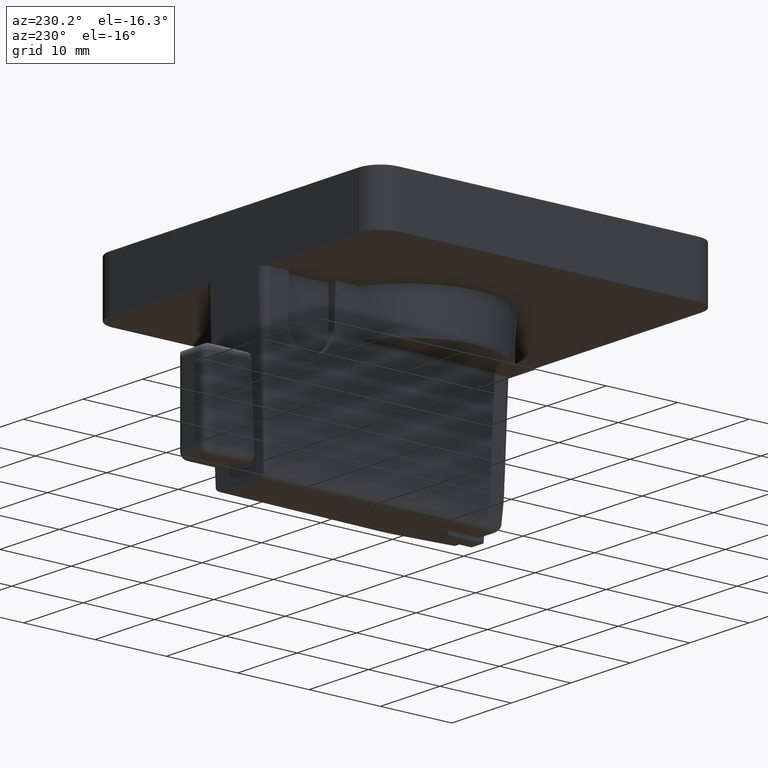
[diagram: clean part render]
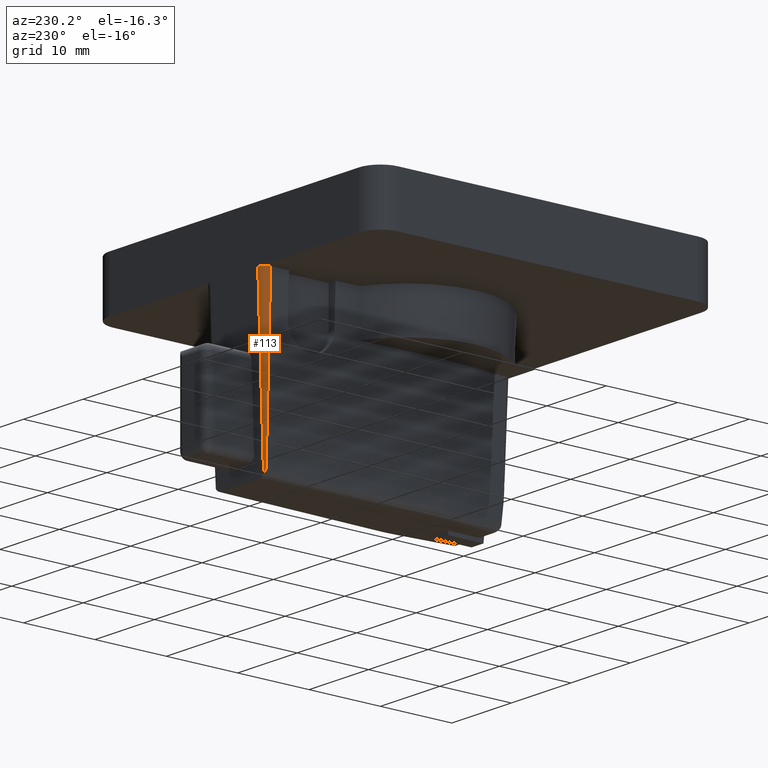
[diagram: same view with one face highlighted and labeled with its STEP entity id]
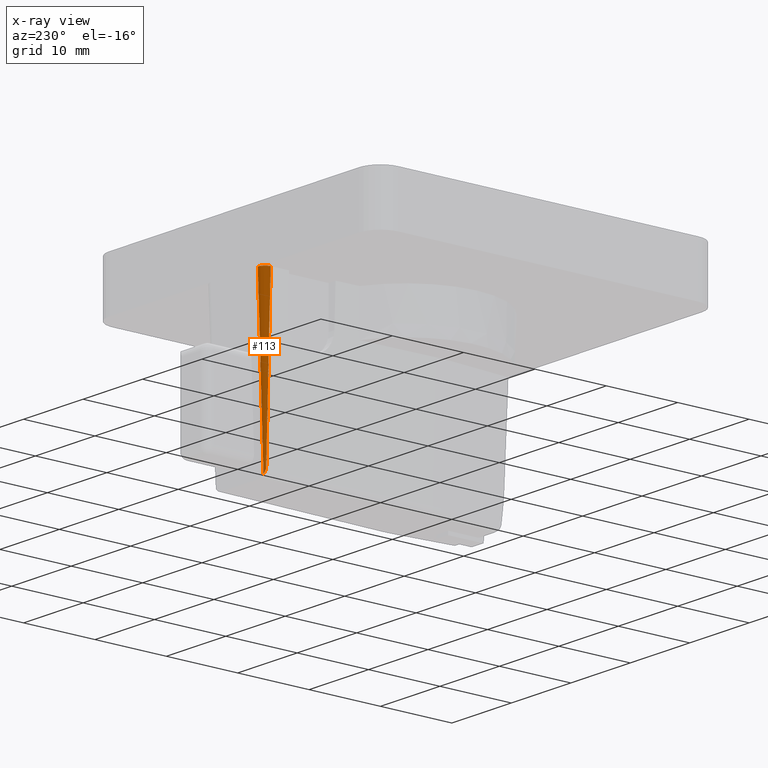
[diagram: x-ray of the same camera — body ghosted, the highlighted face saturated]
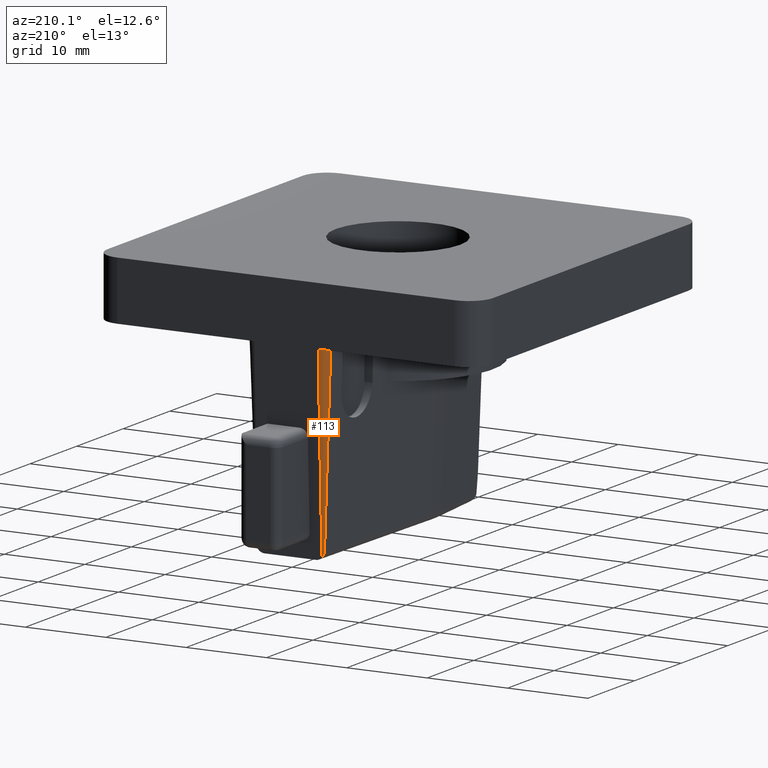
[diagram: same view with one face highlighted and labeled with its STEP entity id]
A machine part, auxiliary view. The second image highlights one B-rep face of the part: STEP entity #113.
The next image is the same camera in x-ray: the body ghosted, the highlighted face saturated — about 0% of this face is hidden behind the body in this view.
A second angle (auxiliary view) of the same face is appended — the face is thin or edge-on in the first view.
In plain terms, the highlighted conical surface has half-angle 2 deg.
Its self-contained STEP definition (entity closure, byte-faithful):
#52=CONICAL_SURFACE('',#1213,1.,2.);
#92=B_SPLINE_CURVE_WITH_KNOTS('',3,(#1836,#1837,#1838,#1839,#1840,#1841,
#1842,#1843,#1844,#1845,#1846,#1847,#1848),.UNSPECIFIED.,.F.,.F.,(4,3,3,
3,4),(0.,0.272710742497588,0.725241232338321,0.990372194226233,1.),
 .UNSPECIFIED.);
#113=ADVANCED_FACE('',(#198),#52,.T.);
#198=FACE_OUTER_BOUND('',#262,.T.);
#262=EDGE_LOOP('',(#485,#486,#487,#488));
#327=CIRCLE('',#1212,1.);
#485=ORIENTED_EDGE('',*,*,#884,.F.);
#486=ORIENTED_EDGE('',*,*,#887,.T.);
#487=ORIENTED_EDGE('',*,*,#816,.T.);
#488=ORIENTED_EDGE('',*,*,#888,.F.);
#711=VERTEX_POINT('',#1665);
#712=VERTEX_POINT('',#1666);
#761=VERTEX_POINT('',#1830);
#762=VERTEX_POINT('',#1832);
#816=EDGE_CURVE('',#711,#712,#976,.T.);
#884=EDGE_CURVE('',#761,#762,#1012,.T.);
#887=EDGE_CURVE('',#761,#711,#92,.T.);
#888=EDGE_CURVE('',#762,#712,#327,.T.);
#976=LINE('',#1664,#1074);
#1012=LINE('',#1831,#1110);
#1074=VECTOR('',#1306,1.);
#1110=VECTOR('',#1424,1.);
#1212=AXIS2_PLACEMENT_3D('',#1849,#1430,#1431);
#1213=AXIS2_PLACEMENT_3D('',#1850,#1432,#1433);
#1306=DIRECTION('',(-0.0348906527828373,0.00078563253201651,0.999390827019096));
#1424=DIRECTION('',(0.,0.0348994967025009,0.999390827019096));
#1430=DIRECTION('',(0.,0.,1.));
#1431=DIRECTION('',(1.,0.,0.));
#1432=DIRECTION('',(0.,0.,1.));
#1433=DIRECTION('',(1.,0.,0.));
#1664=CARTESIAN_POINT('',(-165.975738002622,-217.977488714559,1.13445180567463E-016));
#1665=CARTESIAN_POINT('',(-165.189001390099,-217.995203656173,-22.5348994967028));
#1666=CARTESIAN_POINT('',(-165.975738002622,-217.977488714559,0.));
#1830=CARTESIAN_POINT('',(-164.975991413717,-217.807097324378,-23.112243404855));
#1831=CARTESIAN_POINT('',(-164.975991413717,-217.,0.));
#1832=CARTESIAN_POINT('',(-164.975991413717,-217.,0.));
#1836=CARTESIAN_POINT('',(-164.975991413717,-217.807097324378,-23.112243404855));
#1837=CARTESIAN_POINT('',(-165.012520320089,-217.805448697732,-23.0650329146577));
#1838=CARTESIAN_POINT('',(-165.045199960085,-217.813820361838,-23.0140806824874));
#1839=CARTESIAN_POINT('',(-165.072386908246,-217.82690038491,-22.9625472738926));
#1840=CARTESIAN_POINT('',(-165.117292520601,-217.848505106491,-22.8774277799356));
#1841=CARTESIAN_POINT('',(-165.1490159723,-217.883487582257,-22.7879773742991));
#1842=CARTESIAN_POINT('',(-165.167946089791,-217.921639438291,-22.6990128150635));
#1843=CARTESIAN_POINT('',(-165.179126798195,-217.944173095443,-22.6464676158287));
#1844=CARTESIAN_POINT('',(-165.186026415395,-217.968212778755,-22.5934938817285));
#1845=CARTESIAN_POINT('',(-165.188724896577,-217.9925590121,-22.5406379357157));
#1846=CARTESIAN_POINT('',(-165.188822550184,-217.993440062351,-22.5387251657261));
#1847=CARTESIAN_POINT('',(-165.188914716677,-217.994321981503,-22.53681250802));
#1848=CARTESIAN_POINT('',(-165.189001390099,-217.995203656173,-22.5348994967028));
#1849=CARTESIAN_POINT('',(-164.975991413716,-218.,0.));
#1850=CARTESIAN_POINT('',(-164.975991413716,-218.,0.));